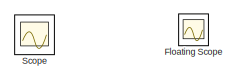
[diagram: root canvas - part 1/2, top left region]
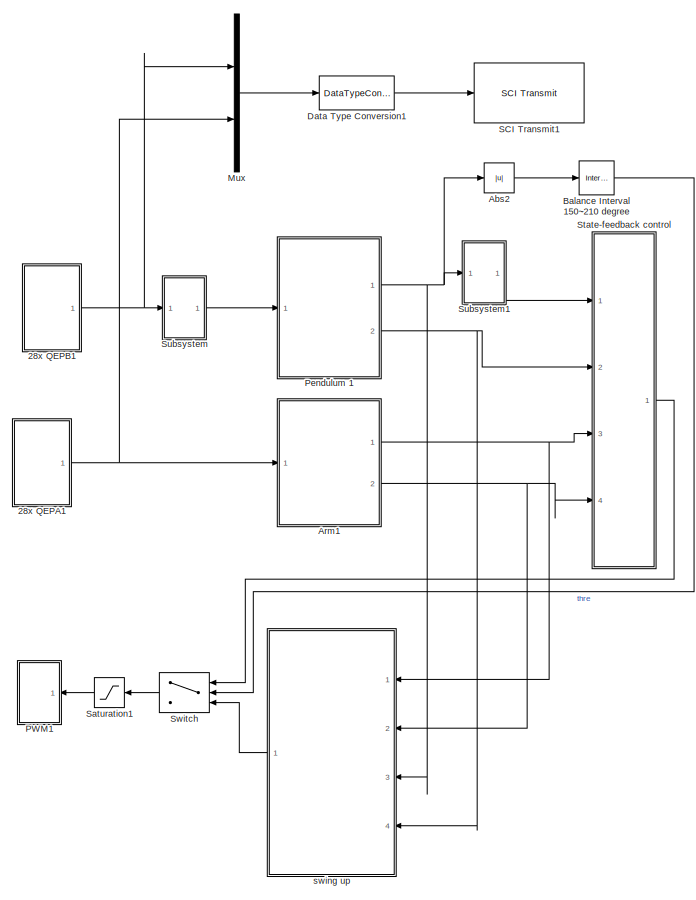
[diagram: root canvas - part 2/2, right side, full height]
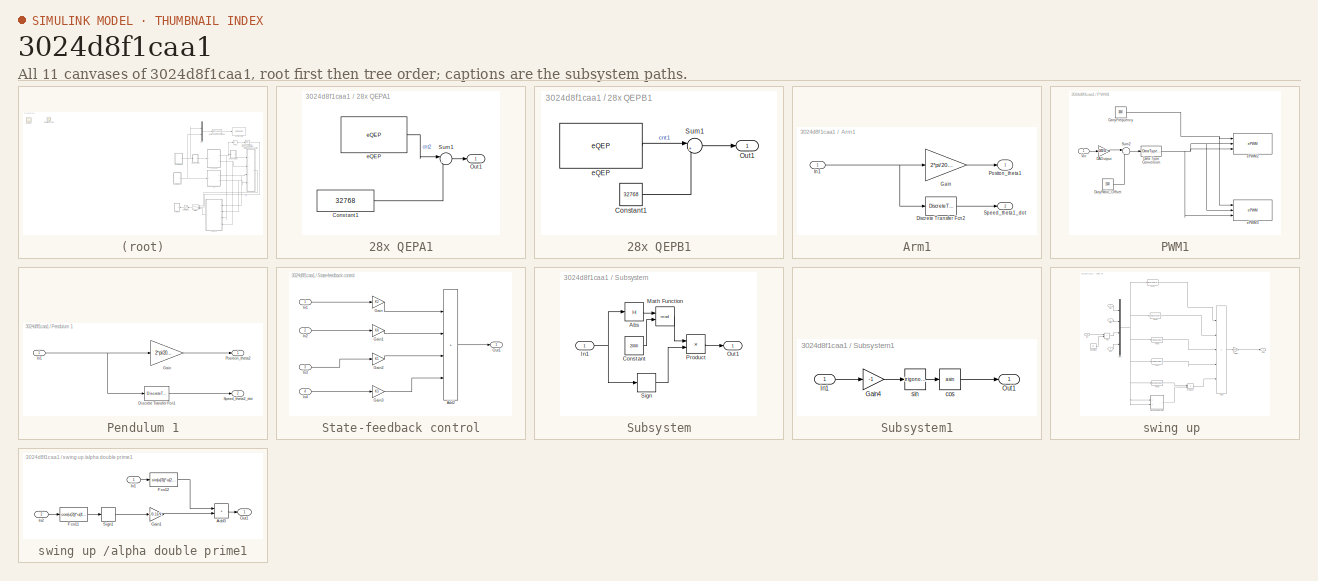
[diagram: thumbnail index - all 11 canvases of the model, root first then tree order]
MODEL slx_3024d8f1caa1
KIND model
CONFIG AbsTol = auto
CONFIG EnableMultiTasking = on
CONFIG FixedStep = 0.001
CONFIG MaxStep = auto
CONFIG MinStep = auto
CONFIG PreLoadFcn = RIP_LQR
CONFIG RelTol = 1e-3
CONFIG SampleTimeConstraint = Unconstrained
CONFIG Solver = FixedStepDiscrete
CONFIG SolverName = FixedStepDiscrete
CONFIG StartTime = 0
CONFIG StopTime = inf
BLOCK [SubSystem] 28x QEPA1
  Ports = [0, 1]
  RequestExecContextInheritance = off
BLOCK [Constant] 28x QEPA1/Constant1
  Value = 32768
BLOCK [Outport] 28x QEPA1/Out1
BLOCK [Sum] 28x QEPA1/Sum1
  Inputs = |-+
  Ports = [2, 1]
BLOCK [Reference] 28x QEPA1/eQEP  REF=c280xlib/eQEP
  Ports = [0, 1]
  SourceBlock = c280xlib/eQEP
  SourceProductBaseCode = TIC2000
  SourceType = C28x eQEP
BLOCK [SubSystem] 28x QEPB1
  Ports = [0, 1]
  RequestExecContextInheritance = off
BLOCK [Constant] 28x QEPB1/Constant1
  Value = 32768
BLOCK [Outport] 28x QEPB1/Out1
BLOCK [Sum] 28x QEPB1/Sum1
  Inputs = |+-
  NameLocation = top
  Ports = [2, 1]
BLOCK [Reference] 28x QEPB1/eQEP  REF=c280xlib/eQEP
  Ports = [0, 1]
  SourceBlock = c280xlib/eQEP
  SourceProductBaseCode = TIC2000
  SourceType = C28x eQEP
BLOCK [Abs] Abs2
BLOCK [SubSystem] Arm1
  Ports = [1, 2]
  RequestExecContextInheritance = off
BLOCK [DiscreteTransferFcn] Arm1/Discrete Transfer Fcn2
  Denominator = [1 -0.7788]
  InputPortMap = u0
  Numerator = [3.14 -3.14]
  Ports = [1, 1]
  SampleTime = 0.001
BLOCK [Gain] Arm1/Gain
  Gain = 2*pi/2000
  OutDataTypeStr = Inherit: Same as input
  ParamDataTypeStr = Inherit: Same as input
  SaturateOnIntegerOverflow = on
BLOCK [Inport] Arm1/In1
BLOCK [Outport] Arm1/Positon_theta1
BLOCK [Outport] Arm1/Speed_theta1_dot
  Port = 2
BLOCK [Reference] Balance Interval 150~210 degree  REF=simulink/Logic and Bit
Operations/Interval Test
  Ports = [1, 1]
  SourceBlock = simulink/Logic and Bit\nOperations/Interval Test
  SourceProductBaseCode = SL
  SourceType = Interval Test
BLOCK [DataTypeConversion] Data Type Conversion1
  OutDataTypeStr = uint16
  RndMeth = Floor
  SampleTime = 0.001
  SaturateOnIntegerOverflow = off
BLOCK [Scope] Floating Scope
  Floating = off
  IOType = viewer
  NumInputPorts = 1
  Ports = []
  ScopeSpecificationString = C++SS(StrPVP('Location','[376, 294, 700, 533]'),StrPVP('Open','off'),MxPVP('AxesTitles',54,'struct(''axes1'',''%<SignalLabel>'')'),StrPVP('ShowLegends','off'),StrPVP('DataFormat','StructureWithTime'),StrPVP('LimitDataPoints','on'),StrPVP('Decimation','1'),StrPVP('BlockParamSampleInput','off'))
BLOCK [Mux] Mux
  DisplayOption = bar
  Inputs = 2
  Ports = [2, 1]
BLOCK [SubSystem] PWM1
  NameLocation = top
  Ports = [1]
  RequestExecContextInheritance = off
BLOCK [Constant] PWM1/CarryFrequency
  OutDataTypeStr = uint16
  Value = 3000
BLOCK [Gain] PWM1/DAOutput
  Gain = 1400/24
  OutDataTypeStr = Inherit: Same as input
  ParamDataTypeStr = Inherit: Same as input
  SaturateOnIntegerOverflow = on
BLOCK [DataTypeConversion] PWM1/Data Type Conversion
BLOCK [Constant] PWM1/DutyRatio_Offset
  Value = 1500
BLOCK [Sum] PWM1/Sum2
  Inputs = |++
  Ports = [2, 1]
  SaturateOnIntegerOverflow = on
BLOCK [Inport] PWM1/Vin
BLOCK [Reference] PWM1/ePWM2  REF=c280xlib/ePWM
  Ports = [3]
  SourceBlock = c280xlib/ePWM
  SourceProductBaseCode = TIC2000
  SourceType = C280x/C2833x ePWM
BLOCK [Reference] PWM1/ePWM3  REF=c280xlib/ePWM
  Ports = [3]
  SourceBlock = c280xlib/ePWM
  SourceProductBaseCode = TIC2000
  SourceType = C280x/C2833x ePWM
BLOCK [SubSystem] Pendulum 1
  Ports = [1, 2]
  RequestExecContextInheritance = off
BLOCK [DiscreteTransferFcn] Pendulum 1/Discrete Transfer Fcn1
  Denominator = [1 -0.7788]
  InputPortMap = u0
  Numerator = [3.14 -3.14]
  Ports = [1, 1]
  SampleTime = 0.001
BLOCK [Gain] Pendulum 1/Gain
  Gain = 2*pi/2000
  OutDataTypeStr = Inherit: Same as input
  ParamDataTypeStr = Inherit: Same as input
  SaturateOnIntegerOverflow = on
BLOCK [Inport] Pendulum 1/In1
BLOCK [Outport] Pendulum 1/Position_theta2
BLOCK [Outport] Pendulum 1/Speed_theta2_dot
  Port = 2
BLOCK [Reference] SCI Transmit1  REF=c280xlib/SCI Transmit
  Ports = [1]
  SourceBlock = c280xlib/SCI Transmit
  SourceProductBaseCode = TIC2000
  SourceType = C28x SCI Transmit
BLOCK [Saturate] Saturation1
  LowerLimit = -12
  NameLocation = top
  UpperLimit = 12
BLOCK [Scope] Scope
  Floating = off
  IOType = viewer
  NumInputPorts = 1
  Ports = []
  ScopeSpecificationString = C++SS(StrPVP('Location','[188, 365, 512, 604]'),StrPVP('Open','off'),MxPVP('AxesTitles',54,'struct(''axes1'',''%<SignalLabel>'')'),StrPVP('ShowDataMarkers','off'),StrPVP('ShowLegends','off'),StrPVP('MaxDataPoints','7500'),StrPVP('LimitDataPoints','on'),StrPVP('DataFormat','Array'),StrPVP('Decimation','1'),StrPVP('BlockParamSampleInput','off'))
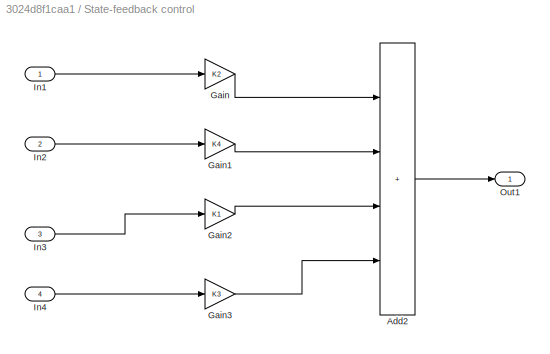
BLOCK [SubSystem] State-feedback control
  Ports = [4, 1]
  RequestExecContextInheritance = off
BLOCK [Sum] State-feedback control/Add2
  IconShape = rectangular
  Inputs = ++++
  Ports = [4, 1]
BLOCK [Gain] State-feedback control/Gain
  Gain = K2
BLOCK [Gain] State-feedback control/Gain1
  Gain = K4
BLOCK [Gain] State-feedback control/Gain2
  Gain = K1
BLOCK [Gain] State-feedback control/Gain3
  Gain = K3
BLOCK [Inport] State-feedback control/In1
BLOCK [Inport] State-feedback control/In2
  Port = 2
BLOCK [Inport] State-feedback control/In3
  Port = 3
BLOCK [Inport] State-feedback control/In4
  Port = 4
BLOCK [Outport] State-feedback control/Out1
BLOCK [SubSystem] Subsystem
  Ports = [1, 1]
  RequestExecContextInheritance = off
BLOCK [Abs] Subsystem/Abs
  SaturateOnIntegerOverflow = off
BLOCK [Constant] Subsystem/Constant
  Value = 2000
BLOCK [Inport] Subsystem/In1
BLOCK [Math] Subsystem/Math Function
  Operator = mod
  Ports = [2, 1]
  SignedPower = on
BLOCK [Outport] Subsystem/Out1
BLOCK [Product] Subsystem/Product
  Ports = [2, 1]
BLOCK [Signum] Subsystem/Sign
BLOCK [SubSystem] Subsystem1
  Ports = [1, 1]
  RequestExecContextInheritance = off
BLOCK [Gain] Subsystem1/Gain4
  Gain = -1
  OutDataTypeStr = Inherit: Same as input
  ParamDataTypeStr = Inherit: Same as input
  SaturateOnIntegerOverflow = on
BLOCK [Inport] Subsystem1/In1
BLOCK [Outport] Subsystem1/Out1
BLOCK [Trigonometry] Subsystem1/cos
  Operator = asin
  Ports = [1, 1]
BLOCK [Trigonometry] Subsystem1/sin
  Ports = [1, 1]
BLOCK [Switch] Switch
  InputSameDT = off
  NameLocation = top
  SaturateOnIntegerOverflow = off
  Threshold = 0.9
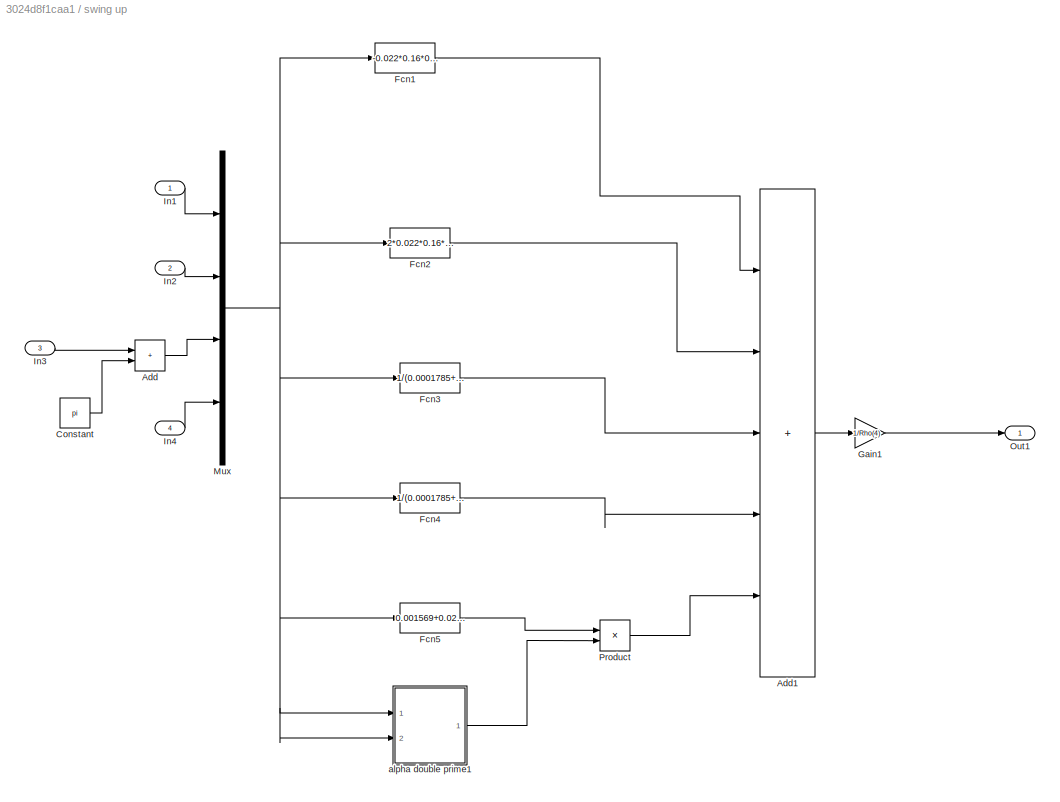
BLOCK [SubSystem] swing up 
  NameLocation = top
  Ports = [4, 1]
  RequestExecContextInheritance = off
BLOCK [Sum] swing up /Add
  IconShape = rectangular
  Ports = [2, 1]
BLOCK [Sum] swing up /Add1
  IconShape = rectangular
  Inputs = +++++
  Ports = [5, 1]
BLOCK [Constant] swing up /Constant
  Value = pi
BLOCK [Fcn] swing up /Fcn1
  Expr = -0.022*0.16*0.16*sin(u(3))*u(4)*u(4)
BLOCK [Fcn] swing up /Fcn2
  Expr = 2*0.022*0.16*0.16*sin(u(3))*cos(u(3))*u(2)*u(4)
BLOCK [Fcn] swing up /Fcn3
  Expr = 1/(0.0001785+0.022*0.16*0.16)*0.022^2*0.16^4*sin(u(3))*cos(u(3))*cos(u(3))*u(2)^2
BLOCK [Fcn] swing up /Fcn4
  Expr = 1/(0.0001785+0.022*0.16*0.16)*0.022*0.16*0.16*cos(u(3))*0.022*0.16*9.8*sin(u(3))
BLOCK [Fcn] swing up /Fcn5
  Expr = 0.001569+0.022*(0.16*0.16+0.16*0.16*(sin(u(3)))^2)-1/(0.0001785+0.022*0.16*0.16)*(0.022*0.16*0.16*cos(u(3)))^2
BLOCK [Gain] swing up /Gain1
  Gain = 1/Rho(4)
BLOCK [Inport] swing up /In1
BLOCK [Inport] swing up /In2
  Port = 2
BLOCK [Inport] swing up /In3
  Port = 3
BLOCK [Inport] swing up /In4
  Port = 4
BLOCK [Mux] swing up /Mux
  DisplayOption = bar
  Ports = [4, 1]
BLOCK [Outport] swing up /Out1
BLOCK [Product] swing up /Product
  Ports = [2, 1]
BLOCK [SubSystem] swing up /alpha double prime1
  Ports = [2, 1]
  RequestExecContextInheritance = off
BLOCK [Sum] swing up /alpha double prime1/Add3
  IconShape = rectangular
  Ports = [2, 1]
BLOCK [Fcn] swing up /alpha double prime1/Fcn11
  Expr = cos(u(3))*u(4)+0.35*(cos(u(3))-1)
BLOCK [Fcn] swing up /alpha double prime1/Fcn12
  Expr = sin(u(3))*u(2)^2
BLOCK [Gain] swing up /alpha double prime1/Gain1
  Gain = 1/0.16*k
BLOCK [Inport] swing up /alpha double prime1/In1
BLOCK [Inport] swing up /alpha double prime1/In2
  Port = 2
BLOCK [Outport] swing up /alpha double prime1/Out1
BLOCK [Signum] swing up /alpha double prime1/Sign1
LINE 28x QEPA1/Constant1:1 -> 28x QEPA1/Sum1:2
LINE 28x QEPA1/Sum1:1 -> 28x QEPA1/Out1:1
LINE 28x QEPA1/eQEP:1 -> 28x QEPA1/Sum1:1
NET 28x QEPA1:1 -> Arm1:1, Mux:2
LINE 28x QEPB1/Constant1:1 -> 28x QEPB1/Sum1:2
LINE 28x QEPB1/Sum1:1 -> 28x QEPB1/Out1:1
LINE 28x QEPB1/eQEP:1 -> 28x QEPB1/Sum1:1
NET 28x QEPB1:1 -> Mux:1, Subsystem:1
LINE Abs2:1 -> Balance Interval 150~210 degree:1
LINE Arm1/Discrete Transfer Fcn2:1 -> Arm1/Speed_theta1_dot:1
LINE Arm1/Gain:1 -> Arm1/Positon_theta1:1
NET Arm1/In1:1 -> Arm1/Discrete Transfer Fcn2:1, Arm1/Gain:1
NET Arm1:1 -> State-feedback control:3, swing up :1
NET Arm1:2 -> State-feedback control:4, swing up :2
LINE Balance Interval 150~210 degree:1 -> Switch:2
LINE Data Type Conversion1:1 -> SCI Transmit1:1
LINE Mux:1 -> Data Type Conversion1:1
NET PWM1/CarryFrequency:1 -> PWM1/ePWM2:1, PWM1/ePWM3:1
LINE PWM1/DAOutput:1 -> PWM1/Sum2:1
NET PWM1/Data Type Conversion:1 -> PWM1/ePWM2:2, PWM1/ePWM2:3, PWM1/ePWM3:2, PWM1/ePWM3:3
LINE PWM1/DutyRatio_Offset:1 -> PWM1/Sum2:2
LINE PWM1/Sum2:1 -> PWM1/Data Type Conversion:1
LINE PWM1/Vin:1 -> PWM1/DAOutput:1
LINE Pendulum 1/Discrete Transfer Fcn1:1 -> Pendulum 1/Speed_theta2_dot:1
LINE Pendulum 1/Gain:1 -> Pendulum 1/Position_theta2:1
NET Pendulum 1/In1:1 -> Pendulum 1/Discrete Transfer Fcn1:1, Pendulum 1/Gain:1
NET Pendulum 1:1 -> Abs2:1, Subsystem1:1, swing up :3
NET Pendulum 1:2 -> State-feedback control:2, swing up :4
LINE Saturation1:1 -> PWM1:1
LINE State-feedback control/Add2:1 -> State-feedback control/Out1:1
LINE State-feedback control/Gain1:1 -> State-feedback control/Add2:2
LINE State-feedback control/Gain2:1 -> State-feedback control/Add2:3
LINE State-feedback control/Gain3:1 -> State-feedback control/Add2:4
LINE State-feedback control/Gain:1 -> State-feedback control/Add2:1
LINE State-feedback control/In1:1 -> State-feedback control/Gain:1
LINE State-feedback control/In2:1 -> State-feedback control/Gain1:1
LINE State-feedback control/In3:1 -> State-feedback control/Gain2:1
LINE State-feedback control/In4:1 -> State-feedback control/Gain3:1
LINE State-feedback control:1 -> Switch:1
LINE Subsystem/Abs:1 -> Subsystem/Math Function:1
LINE Subsystem/Constant:1 -> Subsystem/Math Function:2
NET Subsystem/In1:1 -> Subsystem/Abs:1, Subsystem/Sign:1
LINE Subsystem/Math Function:1 -> Subsystem/Product:1
LINE Subsystem/Product:1 -> Subsystem/Out1:1
LINE Subsystem/Sign:1 -> Subsystem/Product:2
LINE Subsystem1/Gain4:1 -> Subsystem1/sin:1
LINE Subsystem1/In1:1 -> Subsystem1/Gain4:1
LINE Subsystem1/cos:1 -> Subsystem1/Out1:1
LINE Subsystem1/sin:1 -> Subsystem1/cos:1
LINE Subsystem1:1 -> State-feedback control:1
LINE Subsystem:1 -> Pendulum 1:1
LINE Switch:1 -> Saturation1:1
LINE swing up /Add1:1 -> swing up /Gain1:1
LINE swing up /Add:1 -> swing up /Mux:3
LINE swing up /Constant:1 -> swing up /Add:2
LINE swing up /Fcn1:1 -> swing up /Add1:1
LINE swing up /Fcn2:1 -> swing up /Add1:2
LINE swing up /Fcn3:1 -> swing up /Add1:3
LINE swing up /Fcn4:1 -> swing up /Add1:4
LINE swing up /Fcn5:1 -> swing up /Product:1
LINE swing up /Gain1:1 -> swing up /Out1:1
LINE swing up /In1:1 -> swing up /Mux:1
LINE swing up /In2:1 -> swing up /Mux:2
LINE swing up /In3:1 -> swing up /Add:1
LINE swing up /In4:1 -> swing up /Mux:4
NET swing up /Mux:1 -> swing up /Fcn1:1, swing up /Fcn2:1, swing up /Fcn3:1, swing up /Fcn4:1, swing up /Fcn5:1, swing up /alpha double prime1:1, swing up /alpha double prime1:2
LINE swing up /Product:1 -> swing up /Add1:5
LINE swing up /alpha double prime1/Add3:1 -> swing up /alpha double prime1/Out1:1
LINE swing up /alpha double prime1/Fcn11:1 -> swing up /alpha double prime1/Sign1:1
LINE swing up /alpha double prime1/Fcn12:1 -> swing up /alpha double prime1/Add3:1
LINE swing up /alpha double prime1/Gain1:1 -> swing up /alpha double prime1/Add3:2
LINE swing up /alpha double prime1/In1:1 -> swing up /alpha double prime1/Fcn12:1
LINE swing up /alpha double prime1/In2:1 -> swing up /alpha double prime1/Fcn11:1
LINE swing up /alpha double prime1/Sign1:1 -> swing up /alpha double prime1/Gain1:1
LINE swing up /alpha double prime1:1 -> swing up /Product:2
LINE swing up :1 -> Switch:3
note: NET lines group one-source signal fan-out (src -> all destinations, sorted); 1:1 wires keep LINE
